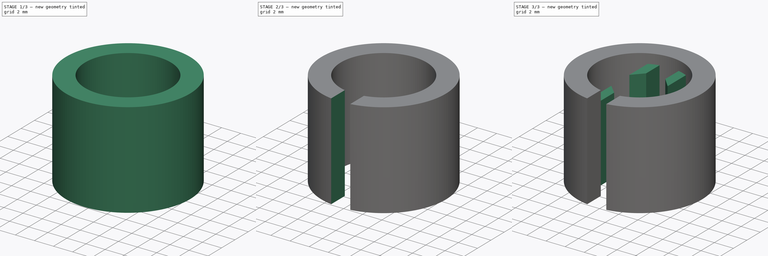
[diagram: build sequence overview — one tinted view per stage of 3, left to right]
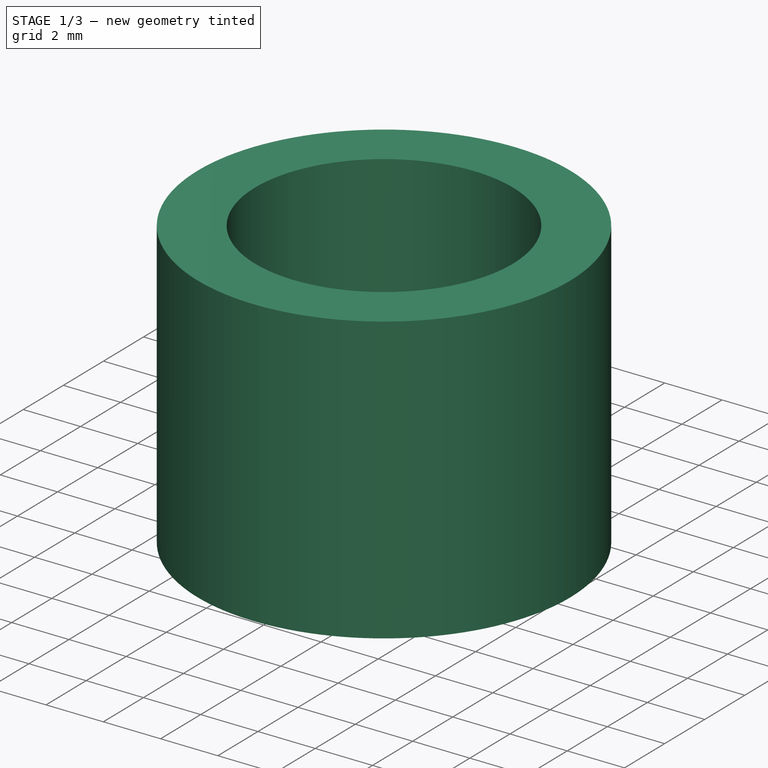
[diagram: stage 1 of 3 — iso view after this stage's code; geometry added in this stage tinted green]
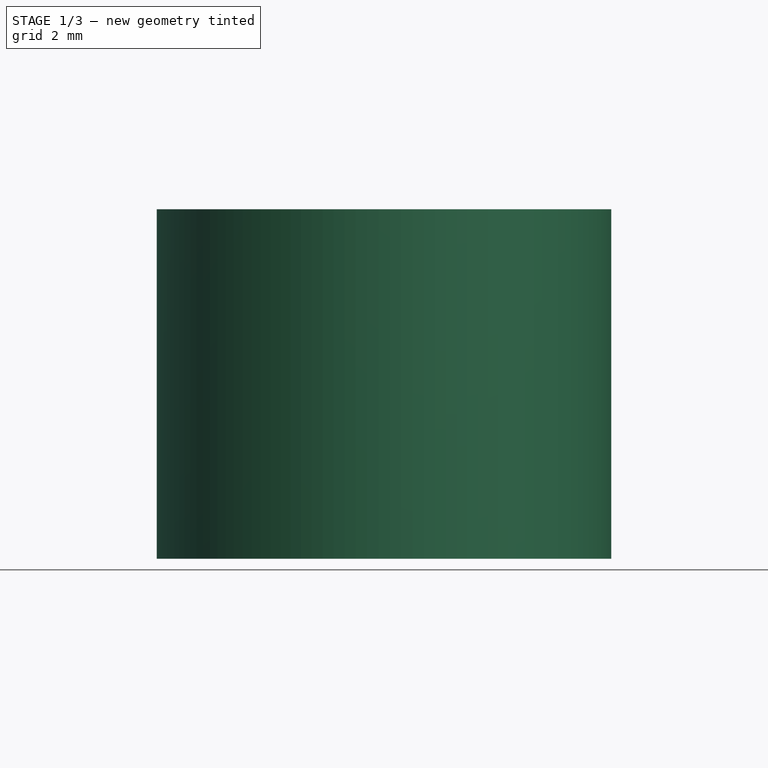
[diagram: stage 1 of 3 — front view after this stage's code; geometry added in this stage tinted green]
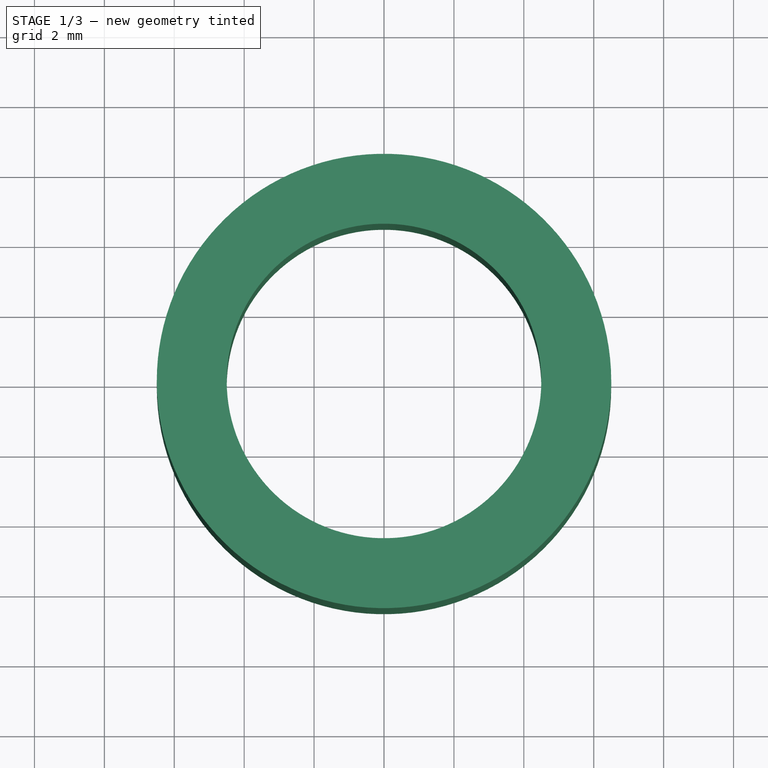
[diagram: stage 1 of 3 — top view after this stage's code; geometry added in this stage tinted green]
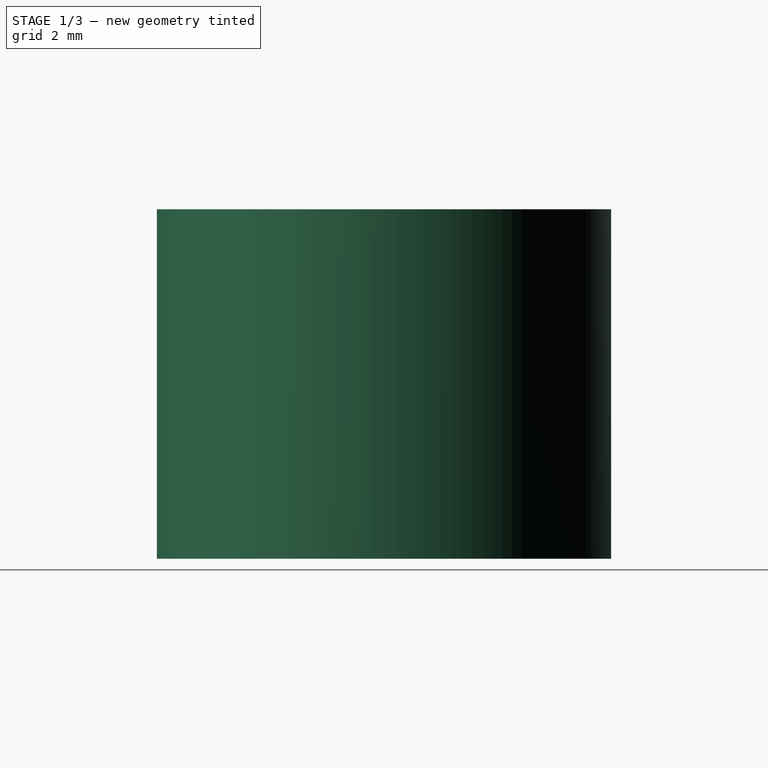
[diagram: stage 1 of 3 — right view after this stage's code; geometry added in this stage tinted green]
FCSTD DOCUMENT  (FreeCAD 0.16R)
Label: marcador perchas
License: All rights reserved
LicenseURL: http://en.wikipedia.org/wiki/All_rights_reserved
objects: Sketcher::SketchObject×4, PartDesign::Pad×2, PartDesign::Pocket×2, Part::Thickness×1
note: 13 computed .brp shape members not serialized (recipe doc carries the construction recipe); baked Part::Feature solids carry a one-line shape summary decoded from their .brp

FEATURE [Sketcher::SketchObject] Sketch
  sketch-geometry (1):
    g0: Circle CenterX=0 CenterY=0 CenterZ=0 NormalX=0 NormalY=0 NormalZ=1 Radius=6.5
  constraints (2):
    c: Coincident(g0,g-1)
    c: Radius(g0) = 6.5
FEATURE [PartDesign::Pad] Pad
  Length = 10
  Length2 = 100
  Sketch = -> Sketch
  Type = 0
FEATURE [Part::Thickness] Thickness
  Faces = -> Pad [Face3,Face2]
  Intersection = false
  Join = 0
  Mode = 0
  SelfIntersection = false
  Value = -2
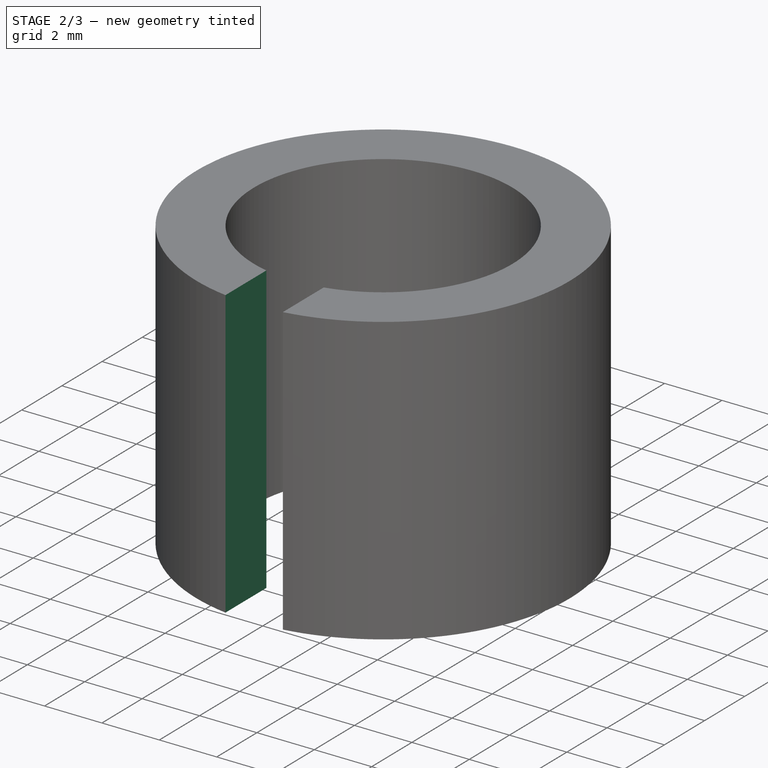
[diagram: stage 2 of 3 — iso view after this stage's code; geometry added in this stage tinted green]
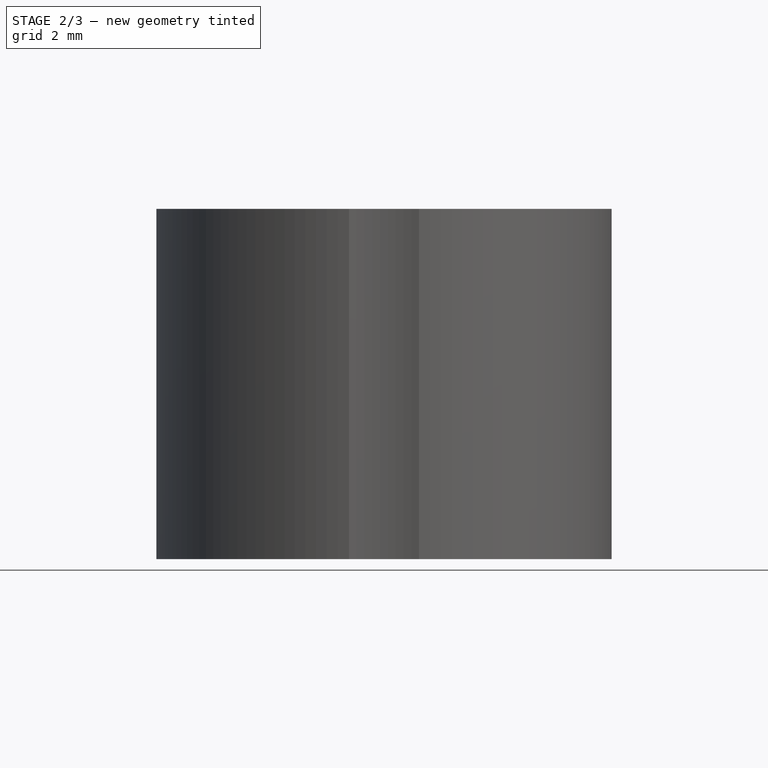
[diagram: stage 2 of 3 — front view after this stage's code; geometry added in this stage tinted green]
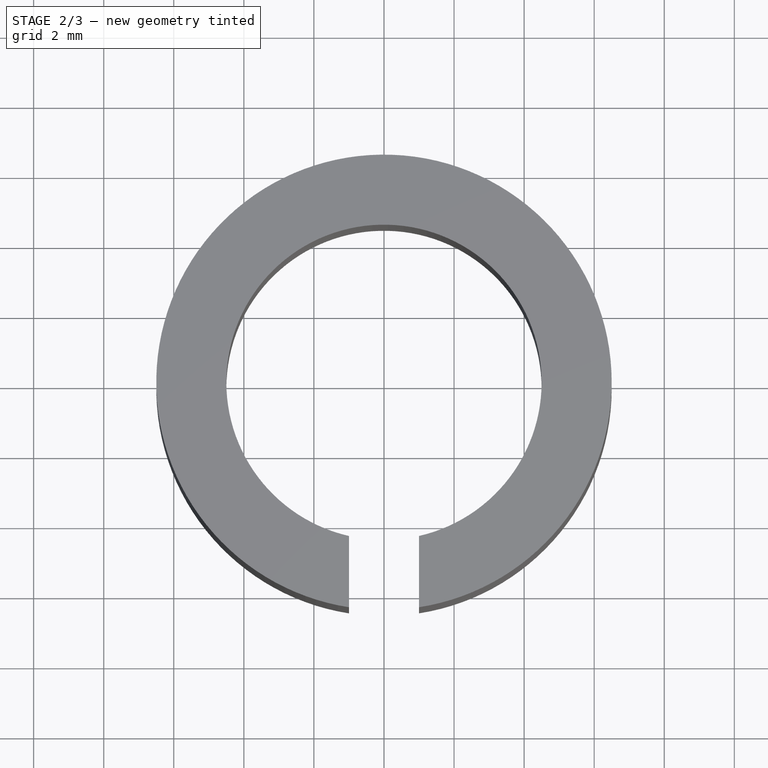
[diagram: stage 2 of 3 — top view after this stage's code; geometry added in this stage tinted green]
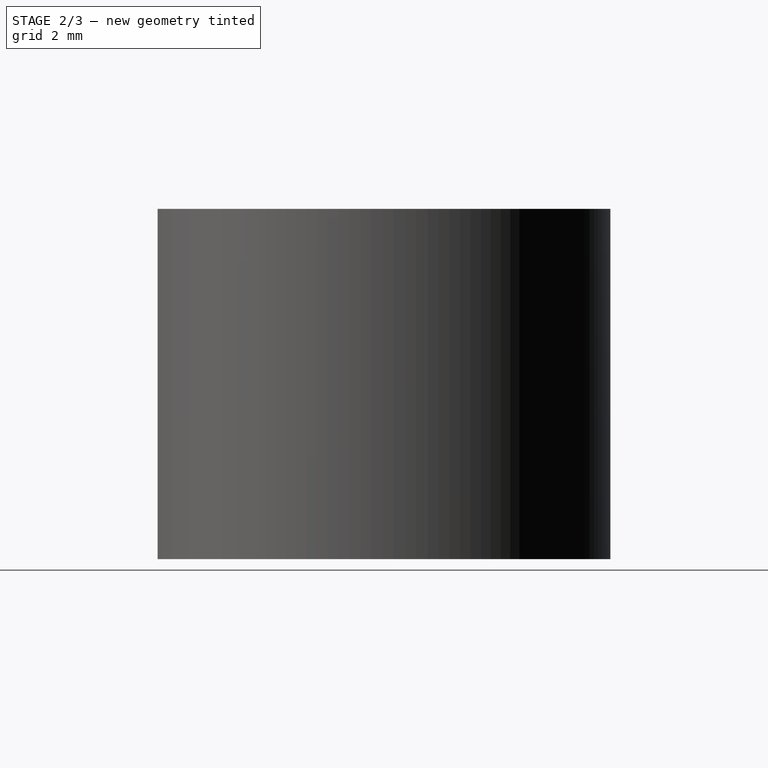
[diagram: stage 2 of 3 — right view after this stage's code; geometry added in this stage tinted green]
FEATURE [Sketcher::SketchObject] Sketch001
  Placement = pos=(0,0,10) rot=(0,0,1;0rad)
  Support = -> Thickness [Face4]
  sketch-geometry (4):
    g0: LineSegment StartX=-1 StartY=-7.29312 StartZ=0 EndX=1 EndY=-7.29312 EndZ=0
    g1: LineSegment StartX=1 StartY=-7.29312 StartZ=0 EndX=1 EndY=-1.89035 EndZ=0
    g2: LineSegment StartX=1 StartY=-1.89035 StartZ=0 EndX=-1 EndY=-1.89035 EndZ=0
    g3: LineSegment StartX=-1 StartY=-1.89035 StartZ=0 EndX=-1 EndY=-7.29312 EndZ=0
  constraints (10):
    c: Coincident(g0,g1)
    c: Coincident(g1,g2)
    c: Coincident(g2,g3)
    c: Coincident(g3,g0)
    c: Horizontal(g0)
    c: Horizontal(g2)
    c: Vertical(g1)
    c: Vertical(g3)
    c: Symmetric(g1,g2,g-2)
    c: DistanceX(g2,g2) = 2
FEATURE [PartDesign::Pocket] Pocket
  Length = 8
  Sketch = -> Sketch001
  Type = 1
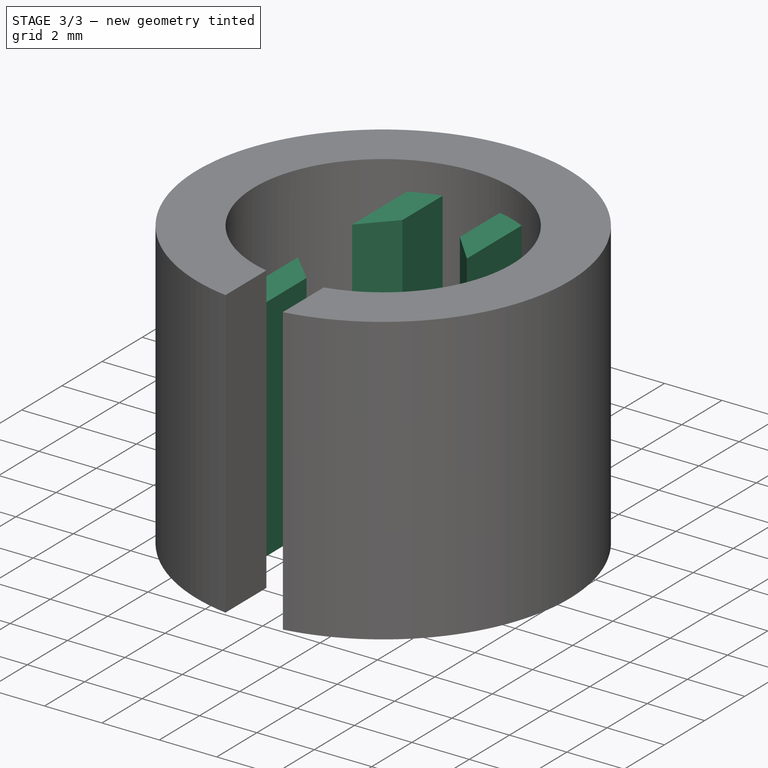
[diagram: stage 3 of 3 — iso view after this stage's code; geometry added in this stage tinted green]
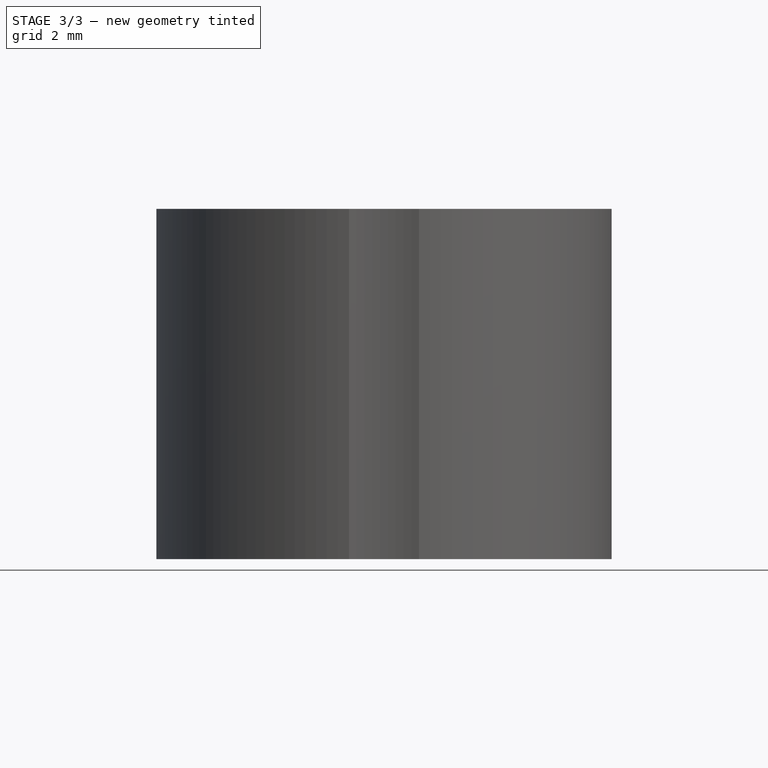
[diagram: stage 3 of 3 — front view after this stage's code; geometry added in this stage tinted green]
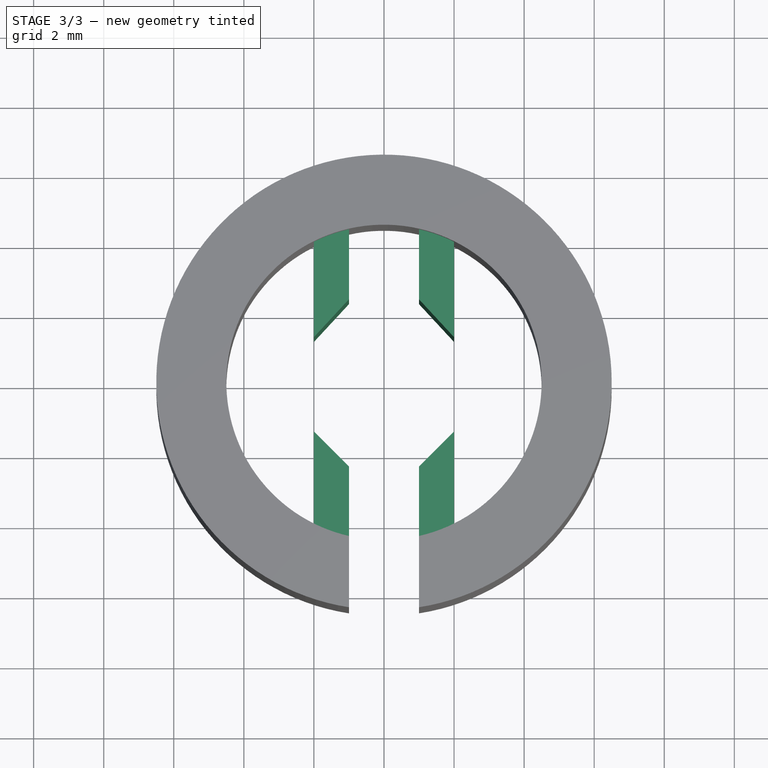
[diagram: stage 3 of 3 — top view after this stage's code; geometry added in this stage tinted green]
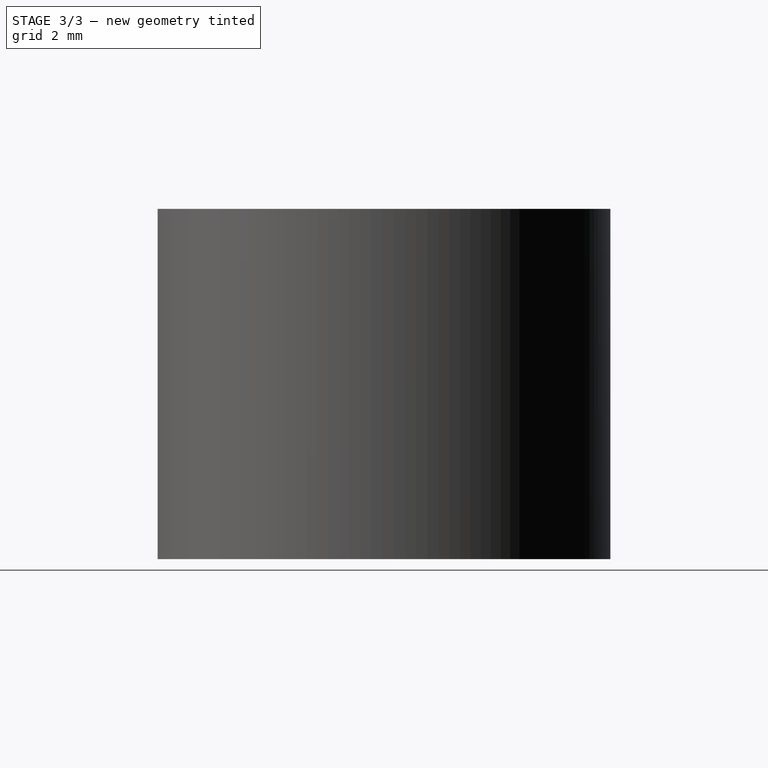
[diagram: stage 3 of 3 — right view after this stage's code; geometry added in this stage tinted green]
FEATURE [Sketcher::SketchObject] Sketch002
  ExternalGeometry = -> [Pocket]
  Placement = pos=(0,0,10) rot=(0,0,1;0rad)
  Support = -> Pocket [Face3]
  sketch-geometry (16):
    g0: LineSegment StartX=1 StartY=-4.38748 StartZ=0 EndX=2 EndY=-4.38748 EndZ=0
    g1: LineSegment StartX=2 StartY=-4.38748 StartZ=0 EndX=2 EndY=-1.38748 EndZ=0
    g2: LineSegment StartX=2 StartY=-1.38748 StartZ=0 EndX=1 EndY=-2.38748 EndZ=0
    g3: LineSegment StartX=1 StartY=-2.38748 StartZ=0 EndX=1 EndY=-4.38748 EndZ=0
    g4: LineSegment StartX=-2 StartY=-4.38748 StartZ=0 EndX=-1 EndY=-4.38748 EndZ=0
    g5: LineSegment StartX=-1 StartY=-4.38748 StartZ=0 EndX=-1 EndY=-2.38748 EndZ=0
    g6: LineSegment StartX=-1 StartY=-2.38748 StartZ=0 EndX=-2 EndY=-1.38748 EndZ=0
    g7: LineSegment StartX=-2 StartY=-1.38748 StartZ=0 EndX=-2 EndY=-4.38748 EndZ=0
    g8: LineSegment StartX=-2 StartY=4.38748 StartZ=0 EndX=-1 EndY=4.38748 EndZ=0
    g9: LineSegment StartX=-1 StartY=4.38748 StartZ=0 EndX=-1 EndY=2.38748 EndZ=0
    g10: LineSegment StartX=-1 StartY=2.38748 StartZ=0 EndX=-2 EndY=1.30733 EndZ=0
    g11: LineSegment StartX=-2 StartY=1.30733 StartZ=0 EndX=-2 EndY=4.38748 EndZ=0
    g12: LineSegment StartX=1 StartY=4.38748 StartZ=0 EndX=2 EndY=4.38748 EndZ=0
    g13: LineSegment StartX=2 StartY=4.38748 StartZ=0 EndX=2 EndY=1.30733 EndZ=0
    g14: LineSegment StartX=2 StartY=1.30733 StartZ=0 EndX=1 EndY=2.38748 EndZ=0
    g15: LineSegment StartX=1 StartY=2.38748 StartZ=0 EndX=1 EndY=4.38748 EndZ=0
  constraints (42):
    c: Coincident(g0,g1)
    c: Coincident(g1,g2)
    c: Coincident(g2,g3)
    c: Coincident(g3,g0)
    c: Horizontal(g0)
    c: Vertical(g1)
    c: Vertical(g3)
    c: Coincident(g4,g5)
    c: Coincident(g5,g6)
    c: Coincident(g6,g7)
    c: Coincident(g7,g4)
    c: Horizontal(g4)
    c: Vertical(g5)
    c: Vertical(g7)
    c: Coincident(g8,g9)
    c: Coincident(g9,g10)
    c: Coincident(g10,g11)
    c: Coincident(g11,g8)
    c: Horizontal(g8)
    c: Vertical(g9)
    c: Vertical(g11)
    c: Coincident(g12,g13)
    c: Coincident(g13,g14)
    c: Coincident(g14,g15)
    c: Coincident(g15,g12)
    c: Horizontal(g12)
    c: Vertical(g13)
    c: Vertical(g15)
    c: Coincident(g-3,g0)
    c: Coincident(g4,g-4)
    c: PointOnObject(g12,g-4)
    c: PointOnObject(g8,g-4)
    c: DistanceY(g9,g8) = 2
    c: DistanceY(g14,g12) = 2
    c: DistanceY(g0,g2) = 2
    c: DistanceY(g4,g5) = 2
    c: DistanceX(g10,g10) = 1
    c: DistanceX(g14,g14) = 1
    c: DistanceX(g2,g2) = 1
    c: DistanceX(g6,g6) = 1
    c: DistanceX(g9,g14) = 2
    c: Symmetric(g13,g10,g-2)
FEATURE [PartDesign::Pad] Pad001
  Length = 9
  Length2 = 100
  Reversed = true
  Sketch = -> Sketch002
  Type = 0
FEATURE [Sketcher::SketchObject] Sketch003
  ExternalGeometry = -> [Pad001]
  Placement = pos=(0,0,10) rot=(0,0,1;0rad)
  Support = -> Pad001 [Face21]
  sketch-geometry (1):
    g0: Circle CenterX=0 CenterY=0 CenterZ=0 NormalX=0 NormalY=0 NormalZ=1 Radius=4.5
  constraints (2):
    c: Coincident(g0,g-1)
    c: Equal(g0,g-3)
FEATURE [PartDesign::Pocket] Pocket001
  Length = 1
  Sketch = -> Sketch003
  Type = 0
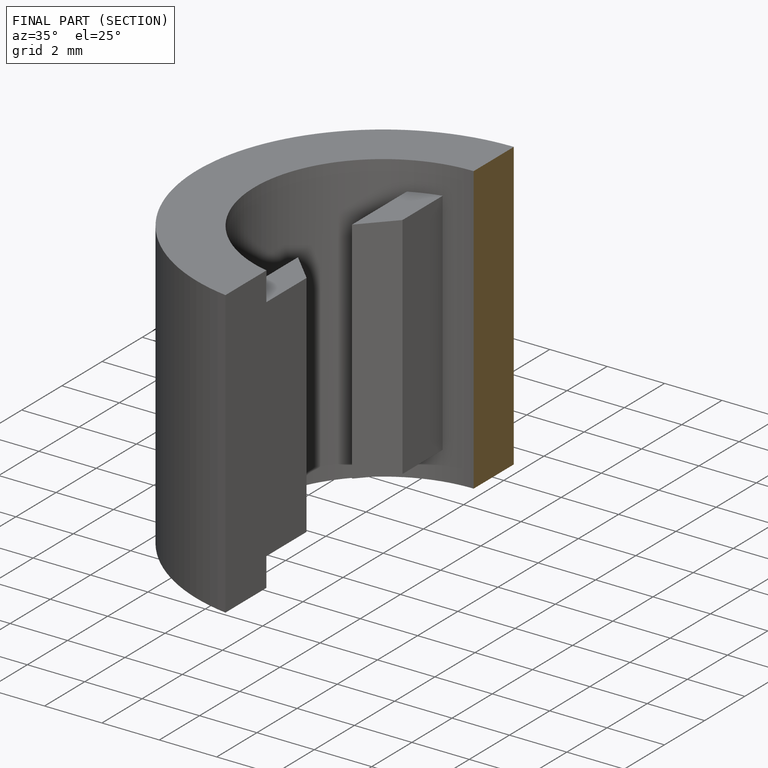
[diagram: finished part — half-section view (interior)]
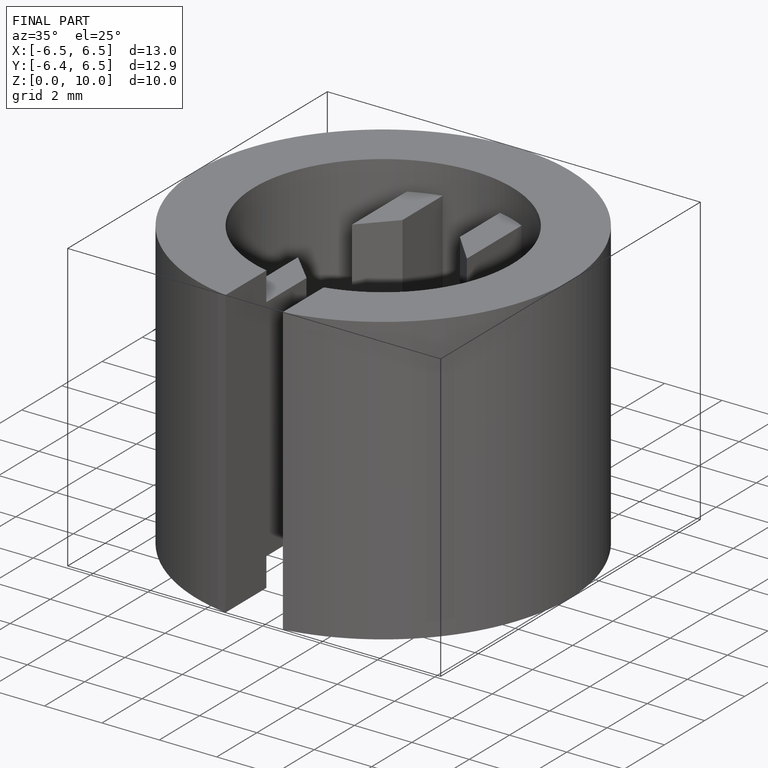
[diagram: finished part — iso view with bounding-box wireframe]
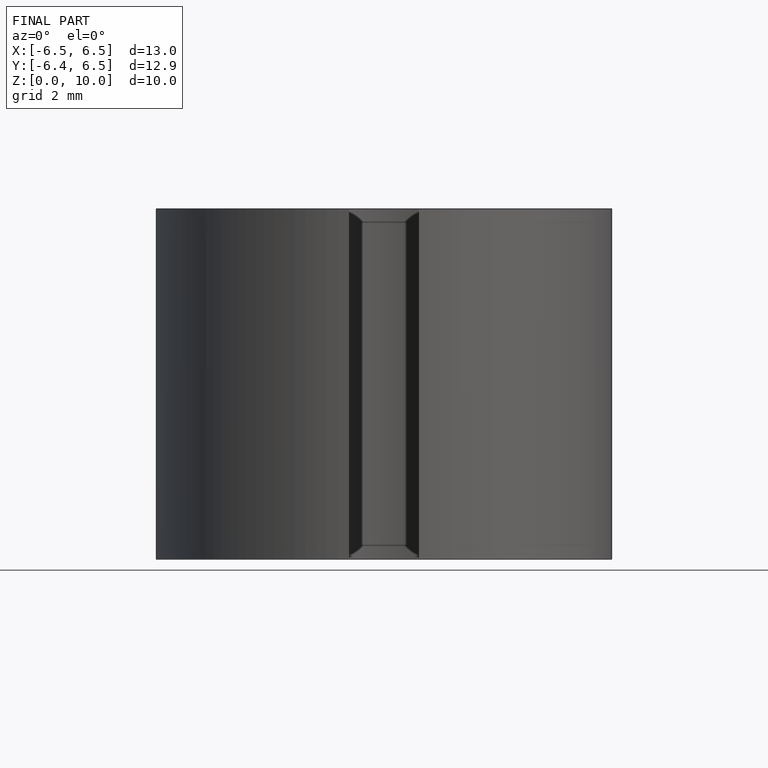
[diagram: finished part — front view with bounding-box wireframe]
